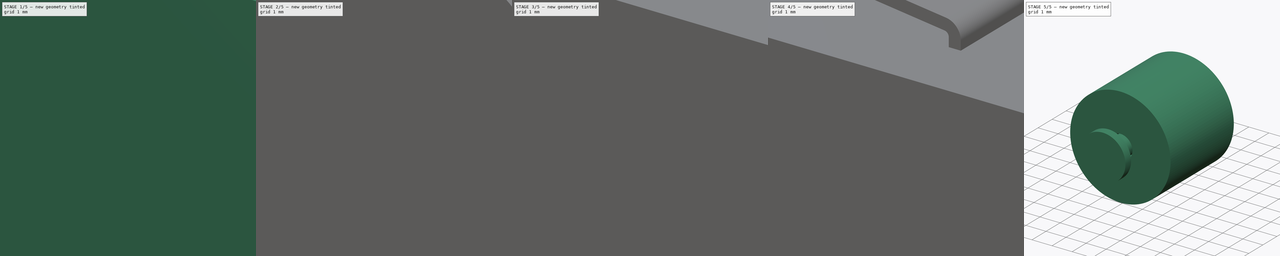
[diagram: build sequence overview — one tinted view per stage of 5, left to right]
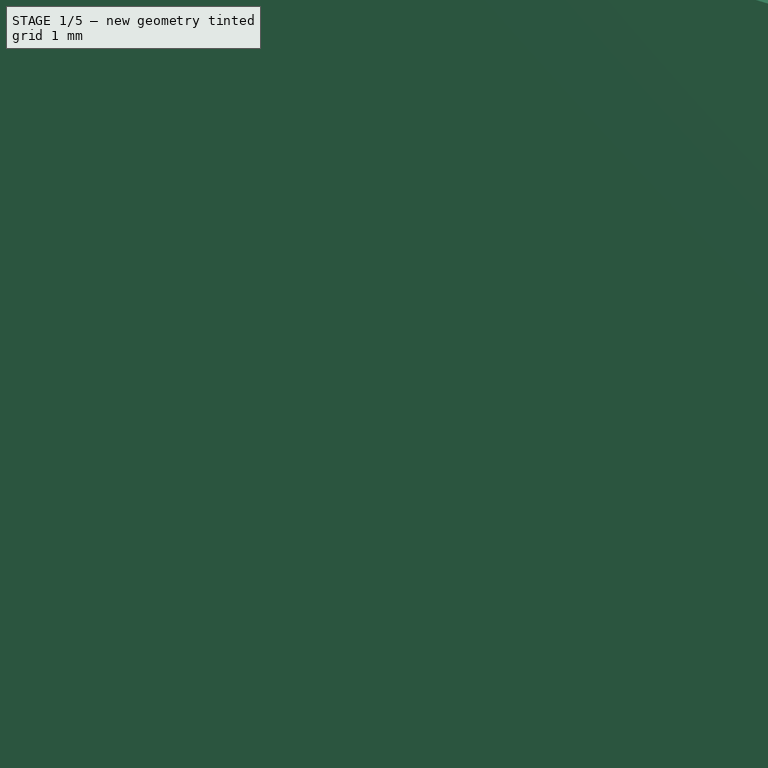
[diagram: stage 1 of 5 — iso view after this stage's code; geometry added in this stage tinted green]
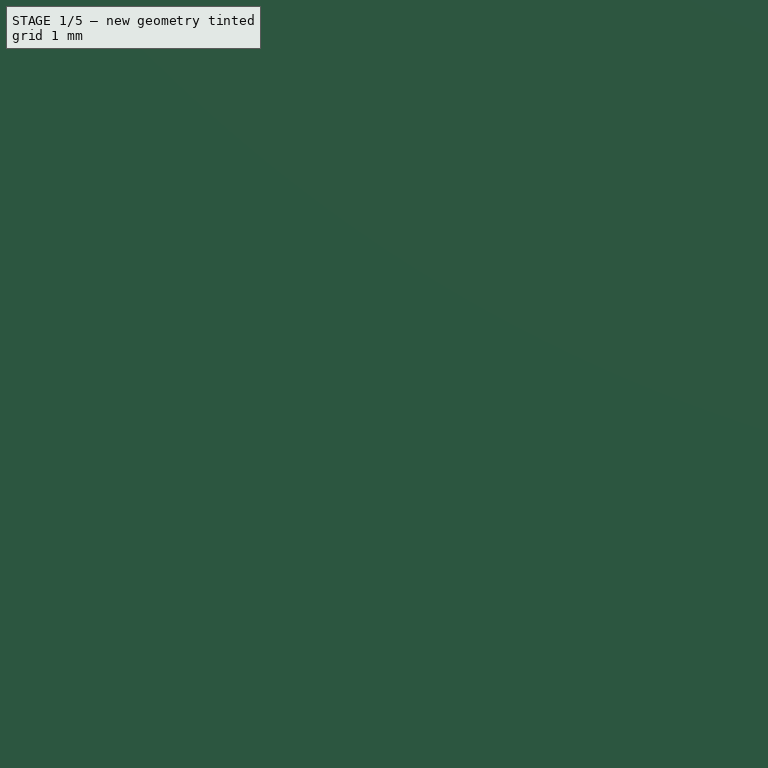
[diagram: stage 1 of 5 — front view after this stage's code; geometry added in this stage tinted green]
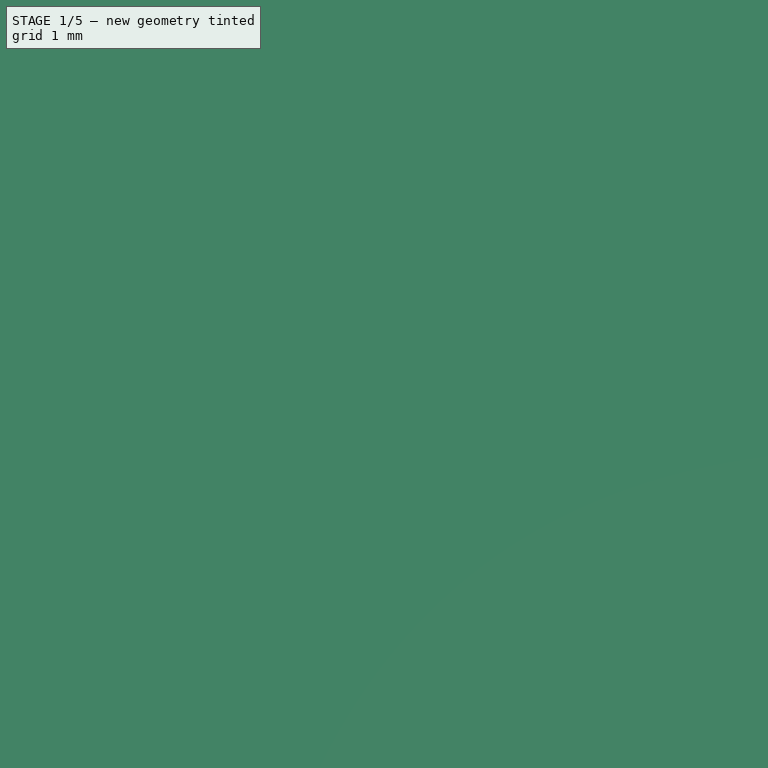
[diagram: stage 1 of 5 — top view after this stage's code; geometry added in this stage tinted green]
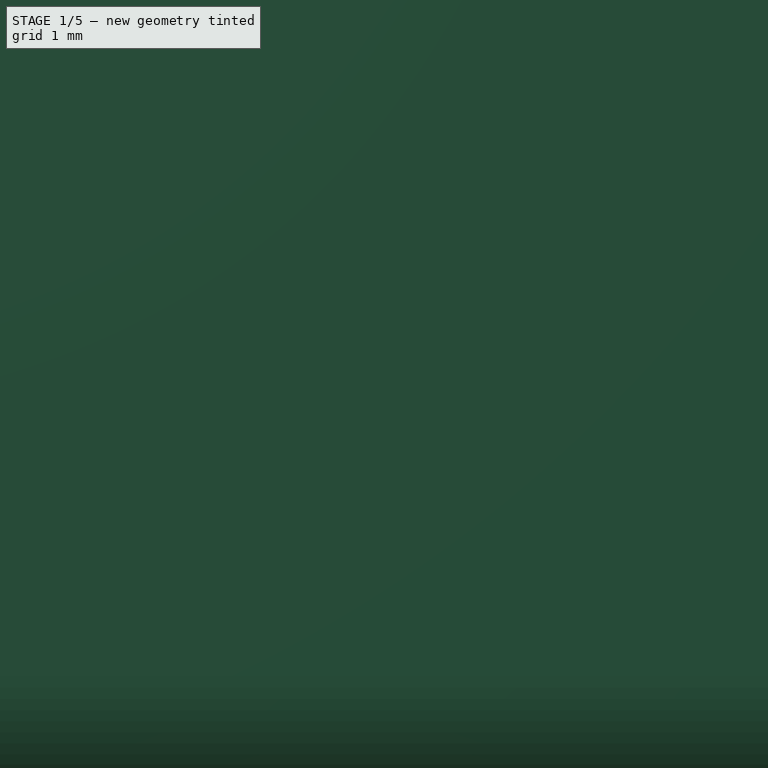
[diagram: stage 1 of 5 — right view after this stage's code; geometry added in this stage tinted green]
FCSTD DOCUMENT  (FreeCAD 2022.709R28846 (Git))
Label: LimitSW
License: All rights reserved
LicenseURL: http://en.wikipedia.org/wiki/All_rights_reserved
objects: Sketcher::SketchObject×15, PartDesign::Pad×8, PartDesign::Pocket×7, PartDesign::Mirrored×3, PartDesign::SubShapeBinder×3, PartDesign::Body×3, PartDesign::Plane×2, PartDesign::LinearPattern×1, PartDesign::Line×1, PartDesign::Revolution×1, App::Part×1
note: 84 computed .brp shape members not serialized (recipe doc carries the construction recipe); baked Part::Feature solids carry a one-line shape summary decoded from their .brp

FEATURE [Sketcher::SketchObject] Sketch
  ArcFitTolerance = 1e-06
  AttachmentSupport = -> [XZ_Plane]
  FullyConstrained = true
  MapMode = 5
  Placement = pos=(0,0,0) rot=(1,0,0;1.5708rad)
  Support = -> [XZ_Plane]
  TreeRank = 11
  sketch-geometry (8):
    g0: LineSegment StartX=2.8 StartY=0 StartZ=0 EndX=25 EndY=0 EndZ=0
    g1: LineSegment StartX=27.8 StartY=-2.8 StartZ=0 EndX=27.8 EndY=-13.1 EndZ=0
    g2: LineSegment StartX=25 StartY=-15.9 StartZ=0 EndX=2.8 EndY=-15.9 EndZ=0
    g3: LineSegment StartX=0 StartY=-13.1 StartZ=0 EndX=0 EndY=-2.8 EndZ=0
    g4: ArcOfCircle CenterX=2.8 CenterY=-2.8 CenterZ=0 NormalX=0 NormalY=0 NormalZ=1 AngleXU=0 Radius=2.8 StartAngle=1.5708 EndAngle=3.14159
    g5: ArcOfCircle CenterX=25 CenterY=-2.8 CenterZ=0 NormalX=0 NormalY=0 NormalZ=1 AngleXU=0 Radius=2.8 StartAngle=0 EndAngle=1.5708
    g6: ArcOfCircle CenterX=25 CenterY=-13.1 CenterZ=0 NormalX=0 NormalY=0 NormalZ=1 AngleXU=0 Radius=2.8 StartAngle=4.71239 EndAngle=6.28319
    g7: ArcOfCircle CenterX=2.8 CenterY=-13.1 CenterZ=0 NormalX=0 NormalY=0 NormalZ=1 AngleXU=0 Radius=2.8 StartAngle=3.14159 EndAngle=4.71239
  constraints (20):
    c: Horizontal(g0)
    c: Horizontal(g2)
    c: Vertical(g1)
    c: Vertical(g3)
    c: Tangent(g0,g4) = 1.5708
    c: Tangent(g3,g4) = 1.5708
    c: Tangent(g0,g5) = 1.5708
    c: Tangent(g1,g5) = 1.5708
    c: Tangent(g2,g6) = 1.5708
    c: Tangent(g1,g6) = 1.5708
    c: Tangent(g2,g7) = 1.5708
    c: Tangent(g3,g7) = 1.5708
    c: Equal(g4,g7)
    c: Equal(g4,g5)
    c: Equal(g6,g4)
    c: PointOnObject(g3,g-2)
    c: PointOnObject(g0,g-1)
    c: Radius(g4) = 2.8
    c: DistanceY(g2,g0) = 15.9
    c: DistanceX(g3,g1) = 27.8
FEATURE [PartDesign::Pad] Pad
  ClaimChildren = false
  Direction = (1,1,1)
  Fit = 0
  FitJoin = 0
  InnerFit = 0
  InnerFitJoin = 0
  InnerTaperAngle = 0
  InnerTaperAngleRev = 0
  Length = 10.3
  Length2 = 100
  Linearize = true
  Midplane = true
  NewSolid = false
  Placement = pos=(0,0,0) rot=(1,0,0;1.5708rad)
  Profile = -> Sketch
  Suppress = false
  TreeRank = 12
  Type = 0
  _ProfileBasedVersion = 1
FEATURE [Sketcher::SketchObject] Sketch001
  ArcFitTolerance = 1e-06
  AttachmentSupport = -> [XZ_Plane]
  ExternalGeometry = -> [Pad]
  FullyConstrained = true
  MapMode = 5
  Placement = pos=(0,0,0) rot=(1,0,0;1.5708rad)
  Support = -> [XZ_Plane]
  TreeRank = 13
  sketch-geometry (8):
    g0: LineSegment StartX=15 StartY=-15.9 StartZ=0 EndX=15 EndY=-17.6 EndZ=0
    g1: ArcOfCircle CenterX=16.5 CenterY=-17.6 CenterZ=0 NormalX=0 NormalY=0 NormalZ=1 AngleXU=0 Radius=1.5 StartAngle=3.14159 EndAngle=4.71238
    g2: LineSegment StartX=16.5 StartY=-19.1 StartZ=0 EndX=23 EndY=-19.1 EndZ=0
    g3: LineSegment StartX=15.8 StartY=-15.9 StartZ=0 EndX=15 EndY=-15.9 EndZ=0
    g4: LineSegment StartX=15.8 StartY=-17.6 StartZ=0 EndX=15.8 EndY=-15.9 EndZ=0
    g5: ArcOfCircle CenterX=16.5 CenterY=-17.6 CenterZ=0 NormalX=0 NormalY=0 NormalZ=1 AngleXU=0 Radius=0.7 StartAngle=3.14159 EndAngle=4.71238
    g6: LineSegment StartX=16.5 StartY=-18.3 StartZ=0 EndX=23 EndY=-18.3 EndZ=0
    g7: LineSegment StartX=23 StartY=-18.3 StartZ=0 EndX=23 EndY=-19.1 EndZ=0
  constraints (25):
    c: Vertical(g0)
    c: Coincident(g1,g0)
    c: Coincident(g2,g1)
    c: Horizontal(g2)
    c: Tangent(g1,g2)
    c: Tangent(g1,g0)
    c: Radius(g1) = 1.5
    c: Horizontal(g-3,g0)
    c: Coincident(g3,g0)
    c: Horizontal(g3)
    c: DistanceX(g3,g3) = 0.8
    c: Coincident(g4,g3)
    c: Vertical(g4)
    c: Coincident(g5,g4)
    c: Coincident(g6,g5)
    c: Horizontal(g6)
    c: Tangent(g6,g5)
    c: Tangent(g5,g4)
    c: Coincident(g5,g1)
    c: Coincident(g7,g6)
    c: Coincident(g7,g2)
    c: Vertical(g7)
    c: DistanceX(g-4,g0) = 15
    c: DistanceY(g1,g0) = 3.2
    c: DistanceX(g0,g2) = 8
FEATURE [PartDesign::Pad] Pad001
  BaseFeature = -> Pad
  ClaimChildren = false
  Direction = (1,1,1)
  Fit = 0
  FitJoin = 0
  InnerFit = 0
  InnerFitJoin = 0
  InnerTaperAngle = 0
  InnerTaperAngleRev = 0
  Length = 6.5
  Length2 = 100
  Linearize = true
  Midplane = true
  NewSolid = false
  Placement = pos=(0,0,0) rot=(1,0,0;1.5708rad)
  Profile = -> Sketch001
  Suppress = false
  TreeRank = 14
  Type = 0
  _ProfileBasedVersion = 1
FEATURE [Sketcher::SketchObject] Sketch002
  ArcFitTolerance = 1e-06
  AttachmentSupport = -> [Pad001]
  ExternalGeometry = -> [Pad001]
  FullyConstrained = true
  MapMode = 5
  Placement = pos=(0,4.2e-15,-19.1) rot=(1,0,0;3.14159rad)
  Support = -> [Pad001]
  TreeRank = 15
  sketch-geometry (5):
    g0: LineSegment StartX=23 StartY=1.45 StartZ=0 EndX=23 EndY=3.25 EndZ=0
    g1: LineSegment StartX=23 StartY=3.25 StartZ=0 EndX=17.8 EndY=3.25 EndZ=0
    g2: LineSegment StartX=17.8 StartY=3.25 StartZ=0 EndX=17.8 EndY=2.45 EndZ=0
    g3: LineSegment StartX=17.8 StartY=2.45 StartZ=0 EndX=22 EndY=2.45 EndZ=0
    g4: LineSegment StartX=22 StartY=2.45 StartZ=0 EndX=23 EndY=1.45 EndZ=0
  constraints (14):
    c: Coincident(g0,g1)
    c: Coincident(g1,g2)
    c: Horizontal(g1)
    c: Vertical(g0)
    c: Vertical(g2)
    c: Coincident(g0,g-3)
    c: DistanceX(g1,g1) = 5.2
    c: DistanceY(g-1,g2) = 2.45
    c: Coincident(g3,g2)
    c: Coincident(g0,g4)
    c: Coincident(g4,g3)
    c: Horizontal(g3)
    c: Angle(g0,g4) = 0.785398
    c: DistanceX(g3,g0) = 1
FEATURE [PartDesign::Pocket] Pocket
  BaseFeature = -> Pad001
  ClaimChildren = false
  Fit = 0
  FitJoin = 0
  InnerFit = 0
  InnerFitJoin = 0
  InnerTaperAngle = 0
  InnerTaperAngleRev = 0
  Length = 5
  Length2 = 100
  Linearize = true
  NewSolid = false
  Placement = pos=(0,0,0) rot=(1,0,0;1.5708rad)
  Profile = -> Sketch002
  Suppress = false
  TreeRank = 16
  Type = 2
  _ProfileBasedVersion = 1
FEATURE [PartDesign::Mirrored] Mirrored
  BaseFeature = -> Pocket
  CopyShape = false
  MirrorPlane = -> XZ_Plane
  NewSolid = false
  OriginalSubs = -> [Pocket]
  Originals = -> [Pocket]
  ParallelTransform = true
  Placement = pos=(0,0,0) rot=(1,0,0;1.5708rad)
  SubTransform = true
  Suppress = false
  TreeRank = 17
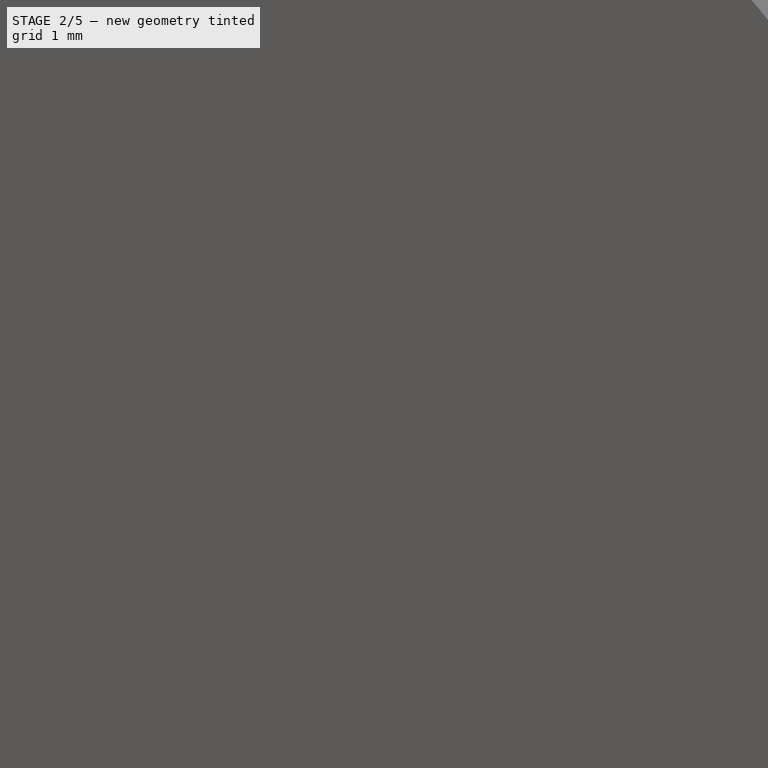
[diagram: stage 2 of 5 — iso view after this stage's code; geometry added in this stage tinted green]
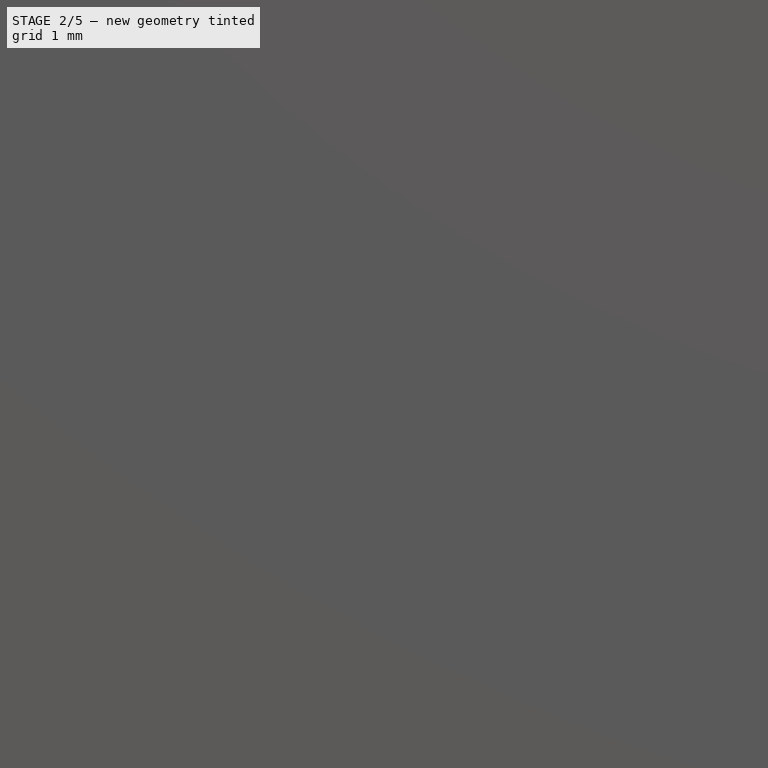
[diagram: stage 2 of 5 — front view after this stage's code; geometry added in this stage tinted green]
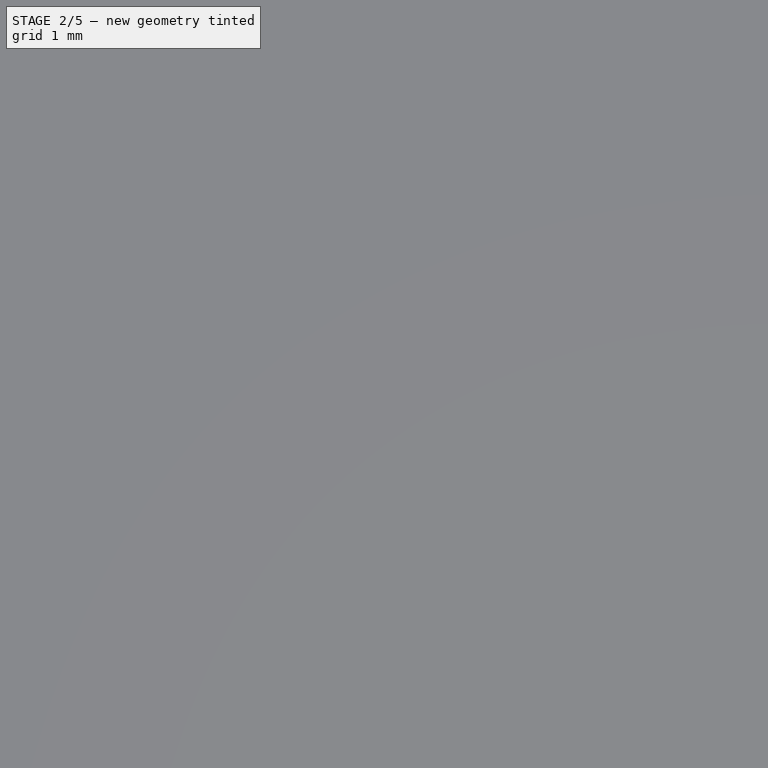
[diagram: stage 2 of 5 — top view after this stage's code; geometry added in this stage tinted green]
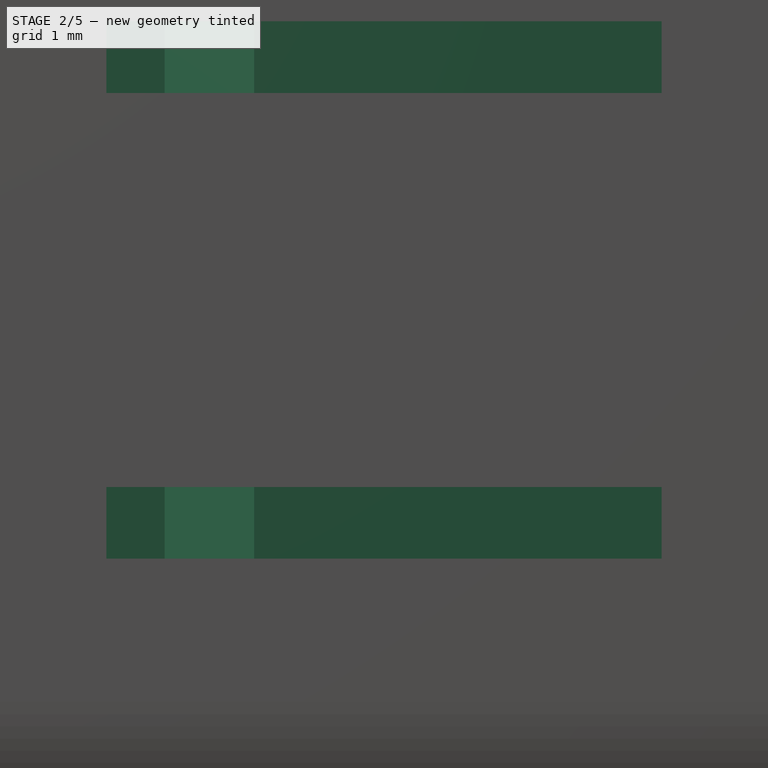
[diagram: stage 2 of 5 — right view after this stage's code; geometry added in this stage tinted green]
FEATURE [Sketcher::SketchObject] Sketch003
  ArcFitTolerance = 1e-06
  AttachmentSupport = -> [Mirrored]
  ExternalGeometry = -> [Mirrored]
  FullyConstrained = true
  MapMode = 5
  Placement = pos=(0,4.2e-15,-19.1) rot=(1,0,0;3.14159rad)
  Support = -> [Mirrored]
  TreeRank = 18
  sketch-geometry (2):
    g0: Circle CenterX=20.4 CenterY=0 CenterZ=0 NormalX=0 NormalY=0 NormalZ=1 AngleXU=0 Radius=0.9
    g1: LineSegment [constr] StartX=17.8 StartY=-2.45 StartZ=0 EndX=23 EndY=2.45 EndZ=0
  constraints (6):
    c: PointOnObject(g0,g-1)
    c: Diameter(g0) = 1.8
    c: Coincident(g1,g-3)
    c: Horizontal(g1,g-4)
    c: Vertical(g1,g-5)
    c: PointOnObject(g0,g1)
FEATURE [PartDesign::Pocket] Pocket001
  BaseFeature = -> Mirrored
  ClaimChildren = false
  Fit = 0
  FitJoin = 0
  InnerFit = 0
  InnerFitJoin = 0
  InnerTaperAngle = 0
  InnerTaperAngleRev = 0
  Length = 5
  Length2 = 100
  Linearize = true
  NewSolid = false
  Placement = pos=(0,0,0) rot=(1,0,0;1.5708rad)
  Profile = -> Sketch003
  Suppress = false
  TreeRank = 19
  Type = 2
  _ProfileBasedVersion = 1
FEATURE [PartDesign::Plane] DatumPlane
  AttachmentOffset = pos=(0,0,-5.5) rot=(0,0,1;0rad)
  AttachmentSupport = -> [Pocket001]
  Length = 27.8
  MapMode = 5
  MinimumLength = 10
  MinimumWidth = 10
  Placement = pos=(0,-2.4e-15,-5.5) rot=(0,0,1;3.14159rad)
  ResizeMode = 0
  Support = -> [Pocket001]
  TreeRank = 20
  Width = 10.3
FEATURE [Sketcher::SketchObject] Sketch004
  ArcFitTolerance = 1e-06
  AttachmentSupport = -> [DatumPlane]
  ExternalGeometry = -> [Pocket001]
  FullyConstrained = true
  MapMode = 5
  Placement = pos=(0,-2.4e-15,-5.5) rot=(0,0,1;3.14159rad)
  Support = -> [DatumPlane]
  TreeRank = 21
  sketch-geometry (4):
    g0: LineSegment StartX=-36.1 StartY=3.1 StartZ=0 EndX=-27.8 EndY=3.1 EndZ=0
    g1: LineSegment StartX=-27.8 StartY=3.1 StartZ=0 EndX=-27.8 EndY=-3.1 EndZ=0
    g2: LineSegment StartX=-27.8 StartY=-3.1 StartZ=0 EndX=-36.1 EndY=-3.1 EndZ=0
    g3: LineSegment StartX=-36.1 StartY=-3.1 StartZ=0 EndX=-36.1 EndY=3.1 EndZ=0
  constraints (11):
    c: Coincident(g0,g1)
    c: Coincident(g1,g2)
    c: Coincident(g2,g3)
    c: Coincident(g3,g0)
    c: Horizontal(g0)
    c: Horizontal(g2)
    c: Vertical(g3)
    c: Vertical(g-3,g0)
    c: Symmetric(g0,g1,g-1)
    c: DistanceY(g3,g3) = 6.2
    c: DistanceX(g2,g2) = 8.3
FEATURE [PartDesign::Pad] Pad002
  BaseFeature = -> Pocket001
  ClaimChildren = false
  Direction = (1,1,1)
  Fit = 0
  FitJoin = 0
  InnerFit = 0
  InnerFitJoin = 0
  InnerTaperAngle = 0
  InnerTaperAngleRev = 0
  Length = 0.8
  Length2 = 100
  Linearize = true
  NewSolid = false
  Placement = pos=(0,0,0) rot=(1,0,0;1.5708rad)
  Profile = -> Sketch004
  Reversed = true
  Suppress = false
  TreeRank = 22
  Type = 0
  _ProfileBasedVersion = 1
FEATURE [PartDesign::LinearPattern] LinearPattern
  BaseFeature = -> Pad002
  CopyShape = false
  Direction = -> Z_Axis
  Length = 5.2
  NewSolid = false
  Occurrences = 2
  OriginalSubs = -> [Pad002]
  Originals = -> [Pad002]
  ParallelTransform = true
  Placement = pos=(0,0,0) rot=(1,0,0;1.5708rad)
  Reversed = true
  SubTransform = true
  Suppress = false
  TreeRank = 23
FEATURE [Sketcher::SketchObject] Sketch005
  ArcFitTolerance = 1e-06
  AttachmentSupport = -> [DatumPlane]
  ExternalGeometry = -> [LinearPattern]
  FullyConstrained = true
  MapMode = 5
  Placement = pos=(0,-2.4e-15,-5.5) rot=(0,0,1;3.14159rad)
  Support = -> [DatumPlane]
  TreeRank = 24
  sketch-geometry (5):
    g0: LineSegment StartX=-36.1 StartY=3.1 StartZ=0 EndX=-30.9 EndY=3.1 EndZ=0
    g1: LineSegment StartX=-30.9 StartY=3.1 StartZ=0 EndX=-30.9 EndY=2.45 EndZ=0
    g2: LineSegment StartX=-30.9 StartY=2.45 StartZ=0 EndX=-35.1 EndY=2.45 EndZ=0
    g3: LineSegment StartX=-35.1 StartY=2.45 StartZ=0 EndX=-36.1 EndY=1.45 EndZ=0
    g4: LineSegment StartX=-36.1 StartY=3.1 StartZ=0 EndX=-36.1 EndY=1.45 EndZ=0
  constraints (14):
    c: Coincident(g0,g-3)
    c: Horizontal(g0)
    c: Coincident(g1,g0)
    c: Vertical(g1)
    c: Coincident(g2,g1)
    c: Horizontal(g2)
    c: Coincident(g4,g0)
    c: Coincident(g4,g3)
    c: Vertical(g4)
    c: Angle(g3,g4) = 0.785398
    c: Coincident(g2,g3)
    c: DistanceX(g3,g2) = 1
    c: DistanceY(g-1,g1) = 2.45
    c: DistanceX(g0,g0) = 5.2
FEATURE [PartDesign::Pocket] Pocket002
  BaseFeature = -> LinearPattern
  ClaimChildren = false
  Fit = 0
  FitJoin = 0
  InnerFit = 0
  InnerFitJoin = 0
  InnerTaperAngle = 0
  InnerTaperAngleRev = 0
  Length = 0
  Length2 = 100
  Linearize = true
  NewSolid = false
  Placement = pos=(0,0,0) rot=(1,0,0;1.5708rad)
  Profile = -> Sketch005
  Suppress = false
  TreeRank = 25
  Type = 3
  UpToFace = -> LinearPattern [Face20]
  _ProfileBasedVersion = 1
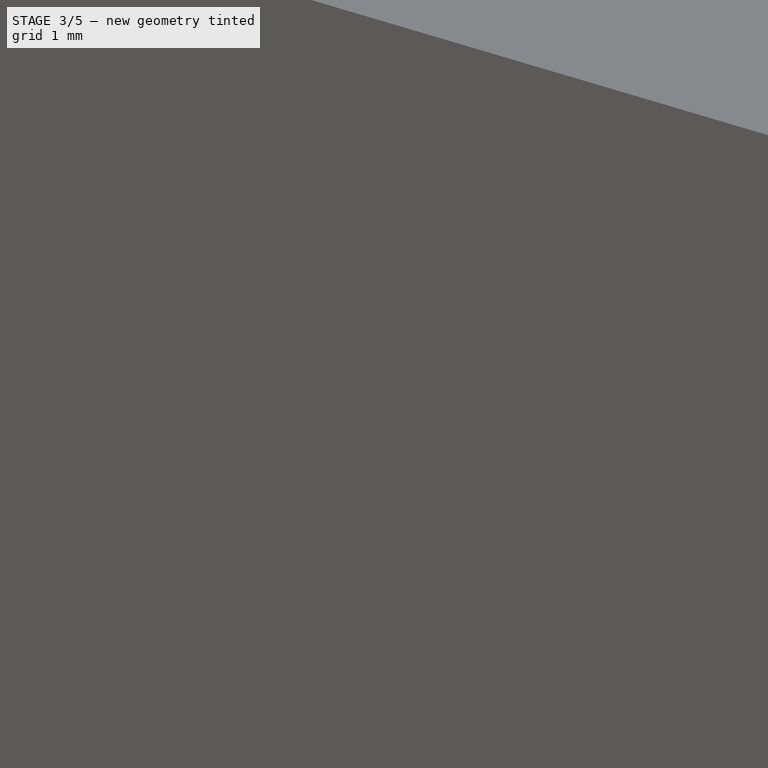
[diagram: stage 3 of 5 — iso view after this stage's code; geometry added in this stage tinted green]
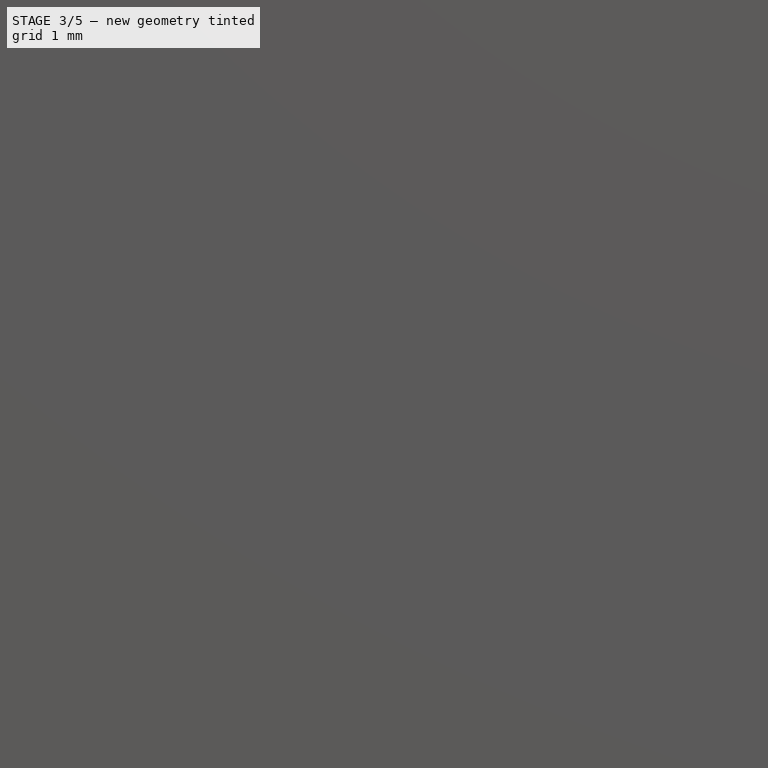
[diagram: stage 3 of 5 — front view after this stage's code; geometry added in this stage tinted green]
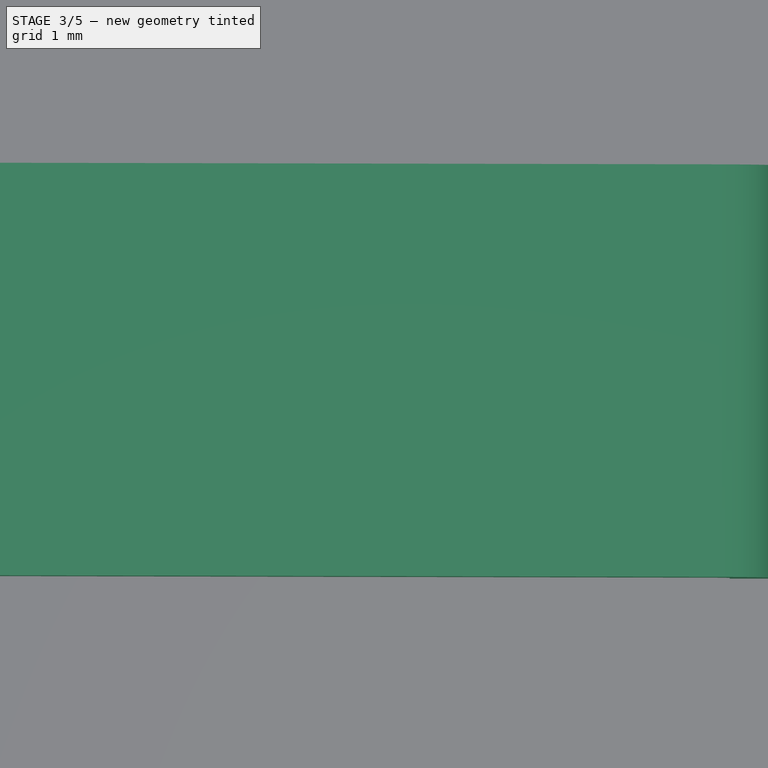
[diagram: stage 3 of 5 — top view after this stage's code; geometry added in this stage tinted green]
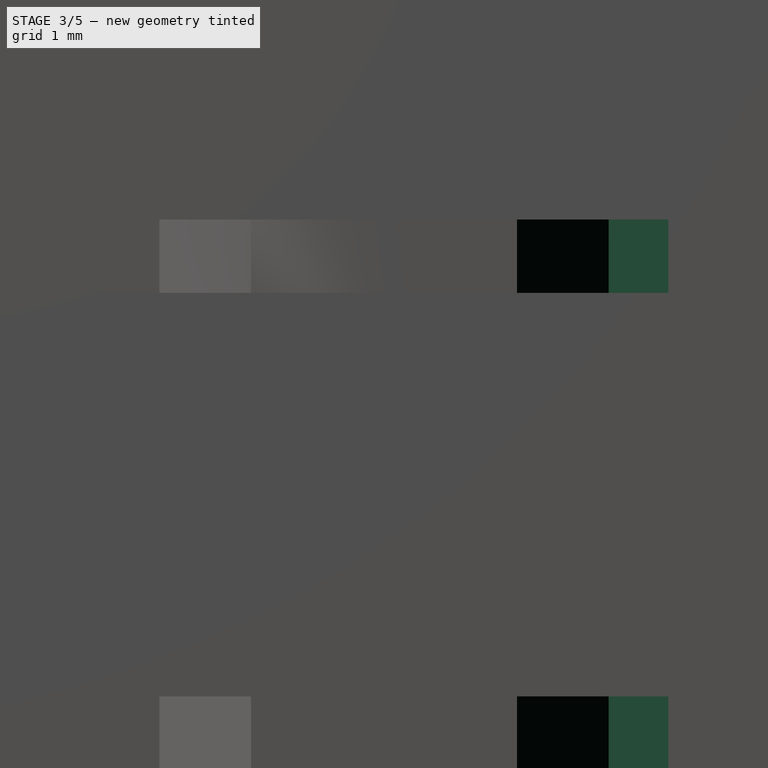
[diagram: stage 3 of 5 — right view after this stage's code; geometry added in this stage tinted green]
FEATURE [PartDesign::Mirrored] Mirrored001
  BaseFeature = -> Pocket002
  CopyShape = false
  MirrorPlane = -> XZ_Plane
  NewSolid = false
  OriginalSubs = -> [Pocket002]
  Originals = -> [Pocket002]
  ParallelTransform = true
  Placement = pos=(0,0,0) rot=(1,0,0;1.5708rad)
  SubTransform = true
  Suppress = false
  TreeRank = 26
FEATURE [Sketcher::SketchObject] Sketch006
  ArcFitTolerance = 1e-06
  AttachmentSupport = -> [DatumPlane]
  ExternalGeometry = -> [Mirrored001]
  FullyConstrained = true
  MapMode = 5
  Placement = pos=(0,-2.4e-15,-5.5) rot=(0,0,1;3.14159rad)
  Support = -> [DatumPlane]
  TreeRank = 27
  sketch-geometry (2):
    g0: Circle CenterX=-33.5 CenterY=0 CenterZ=0 NormalX=0 NormalY=0 NormalZ=1 AngleXU=0 Radius=0.9
    g1: LineSegment [constr] StartX=-30.9 StartY=2.45 StartZ=0 EndX=-36.1 EndY=-2.45 EndZ=0
  constraints (6):
    c: PointOnObject(g0,g-1)
    c: Diameter(g0) = 1.8
    c: Coincident(g1,g-3)
    c: Vertical(g-5,g1)
    c: Horizontal(g1,g-4)
    c: PointOnObject(g0,g1)
FEATURE [PartDesign::Pocket] Pocket003
  BaseFeature = -> Mirrored001
  ClaimChildren = false
  Fit = 0
  FitJoin = 0
  InnerFit = 0
  InnerFitJoin = 0
  InnerTaperAngle = 0
  InnerTaperAngleRev = 0
  Length = 5
  Length2 = 100
  Linearize = true
  NewSolid = false
  Placement = pos=(0,0,0) rot=(1,0,0;1.5708rad)
  Profile = -> Sketch006
  Suppress = false
  TreeRank = 28
  Type = 1
  _ProfileBasedVersion = 1
FEATURE [Sketcher::SketchObject] Sketch008
  ArcFitTolerance = 1e-06
  AttachmentSupport = -> [XZ_Plane]
  ExternalGeometry = -> [Pocket003]
  FullyConstrained = true
  MapMode = 5
  Placement = pos=(0,0,0) rot=(1,0,0;1.5708rad)
  Support = -> [XZ_Plane]
  TreeRank = 30
  sketch-geometry (6):
    g0: LineSegment StartX=3.4 StartY=0 StartZ=0 EndX=6.2 EndY=0 EndZ=0
    g1: LineSegment StartX=6.2 StartY=0 StartZ=0 EndX=6.2 EndY=1.26437 EndZ=0
    g2: LineSegment StartX=3.4 StartY=0 StartZ=0 EndX=3.4 EndY=1.26437 EndZ=0
    g3: LineSegment [constr] StartX=4.8 StartY=0 StartZ=0 EndX=4.8 EndY=0.3 EndZ=0
    g4: ArcOfCircle CenterX=4.8 CenterY=0.3 CenterZ=0 NormalX=0 NormalY=0 NormalZ=1 AngleXU=0 Radius=1.7 StartAngle=0.603191 EndAngle=2.5384
    g5: GeomPoint [constr] X=4.8 Y=2 Z=0
  constraints (17):
    c: PointOnObject(g0,g-1)
    c: PointOnObject(g0,g-1)
    c: Coincident(g1,g0)
    c: Coincident(g2,g0)
    c: Vertical(g2)
    c: Vertical(g1)
    c: Equal(g2,g1)
    c: Symmetric(g0,g0,g3)
    c: Coincident(g4,g2)
    c: Coincident(g4,g1)
    c: Coincident(g4,g3)
    c: DistanceX(g0,g0) = 2.8
    c: DistanceX(g3,g-3) = 23
    c: PointOnObject(g5,g4)
    c: PointOnObject(g5,g3)
    c: DistanceY(g3,g5) = 2
    c: Radius(g4) = 1.7
FEATURE [PartDesign::Pad] Pad003
  BaseFeature = -> Pocket003
  ClaimChildren = false
  Direction = (1,1,1)
  Fit = 0
  FitJoin = 0
  InnerFit = 0
  InnerFitJoin = 0
  InnerTaperAngle = 0
  InnerTaperAngleRev = 0
  Length = 4
  Length2 = 100
  Linearize = true
  Midplane = true
  NewSolid = false
  Placement = pos=(0,0,0) rot=(1,0,0;1.5708rad)
  Profile = -> Sketch008
  Suppress = false
  TreeRank = 31
  Type = 0
  _ProfileBasedVersion = 1
FEATURE [Sketcher::SketchObject] Sketch009
  ArcFitTolerance = 1e-06
  AttachmentSupport = -> [XZ_Plane]
  ExternalGeometry = -> [Pad003]
  FullyConstrained = true
  MapMode = 5
  Placement = pos=(0,0,0) rot=(1,0,0;1.5708rad)
  Support = -> [XZ_Plane]
  TreeRank = 32
  sketch-geometry (9):
    g0: LineSegment StartX=16.3 StartY=0.382947 StartZ=0 EndX=16.3 EndY=4.2e-15 EndZ=0
    g1: LineSegment StartX=16.1251 StartY=0.581367 StartZ=0 EndX=-11.0415 EndY=4.01686 EndZ=0
    g2: ArcOfCircle CenterX=16.1 CenterY=0.382947 CenterZ=0 NormalX=0 NormalY=0 NormalZ=1 AngleXU=0 Radius=0.2 StartAngle=0 EndAngle=1.445
    g3: LineSegment StartX=-10.9788 StartY=4.51291 StartZ=0 EndX=16.1878 EndY=1.07742 EndZ=0
    g4: LineSegment StartX=16.8 StartY=0.382947 StartZ=0 EndX=16.8 EndY=4.2e-15 EndZ=0
    g5: LineSegment StartX=16.8 StartY=4.1e-15 StartZ=0 EndX=16.3 EndY=4.1e-15 EndZ=0
    g6: ArcOfCircle CenterX=16.1 CenterY=0.382947 CenterZ=0 NormalX=0 NormalY=0 NormalZ=1 AngleXU=0 Radius=0.7 StartAngle=0 EndAngle=1.445
    g7: GeomPoint [constr] X=16.8 Y=1 Z=0
    g8: LineSegment StartX=-10.9788 StartY=4.51291 StartZ=0 EndX=-11.0415 EndY=4.01686 EndZ=0
  constraints (24):
    c: PointOnObject(g0,g-5)
    c: Tangent(g-6,g1)
    c: Vertical(g0)
    c: Tangent(g1,g2) = -1.5708
    c: Tangent(g0,g2) = 1.5708
    c: Radius(g2) = 0.2
    c: PointOnObject(g4,g-5)
    c: Vertical(g4)
    c: Coincident(g5,g4)
    c: Coincident(g5,g0)
    c: DistanceX(g5,g5) = 0.5
    c: DistanceX(g4,g-3) = 11
    c: Parallel(g3,g1)
    c: Tangent(g4,g6) = 1.5708
    c: Tangent(g3,g6) = 1.5708
    c: Coincident(g6,g2)
    c: PointOnObject(g7,g3)
    c: PointOnObject(g7,g4)
    c: DistanceY(g4,g7) = 1
    c: Coincident(g8,g3)
    c: Coincident(g8,g1)
    c: Perpendicular(g1,g8)
    c: Distance(g3,g7) = 28
    c: DistanceY(g-7,g3) = 20.4129
FEATURE [PartDesign::Pad] Pad004
  BaseFeature = -> Pad003
  ClaimChildren = false
  Direction = (1,1,1)
  Fit = 0
  FitJoin = 0
  InnerFit = 0
  InnerFitJoin = 0
  InnerTaperAngle = 0
  InnerTaperAngleRev = 0
  Length = 4.5
  Length2 = 100
  Linearize = true
  Midplane = true
  NewSolid = false
  Placement = pos=(0,0,0) rot=(1,0,0;1.5708rad)
  Profile = -> Sketch009
  Suppress = false
  TreeRank = 33
  Type = 0
  _ProfileBasedVersion = 1
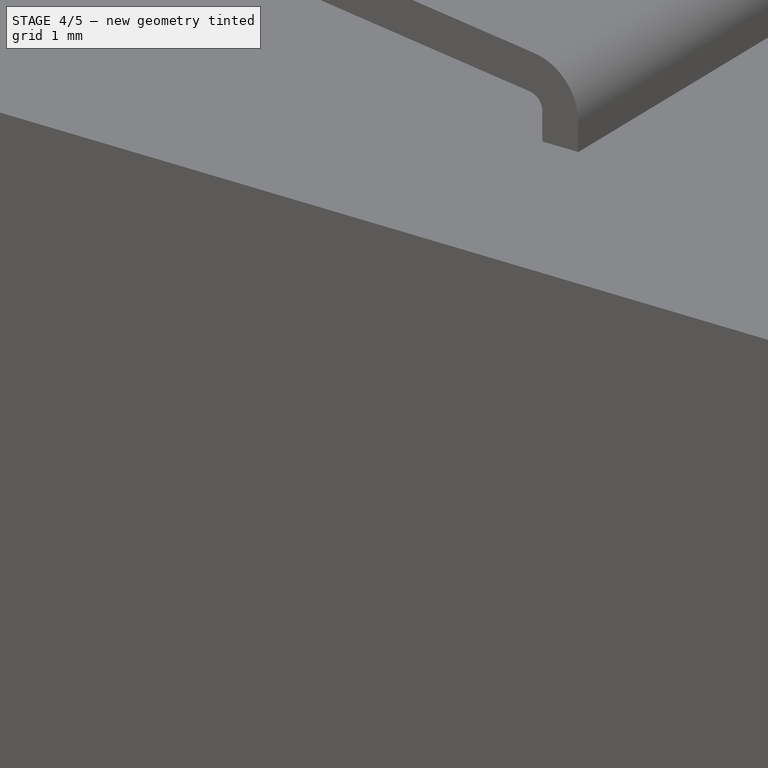
[diagram: stage 4 of 5 — iso view after this stage's code; geometry added in this stage tinted green]
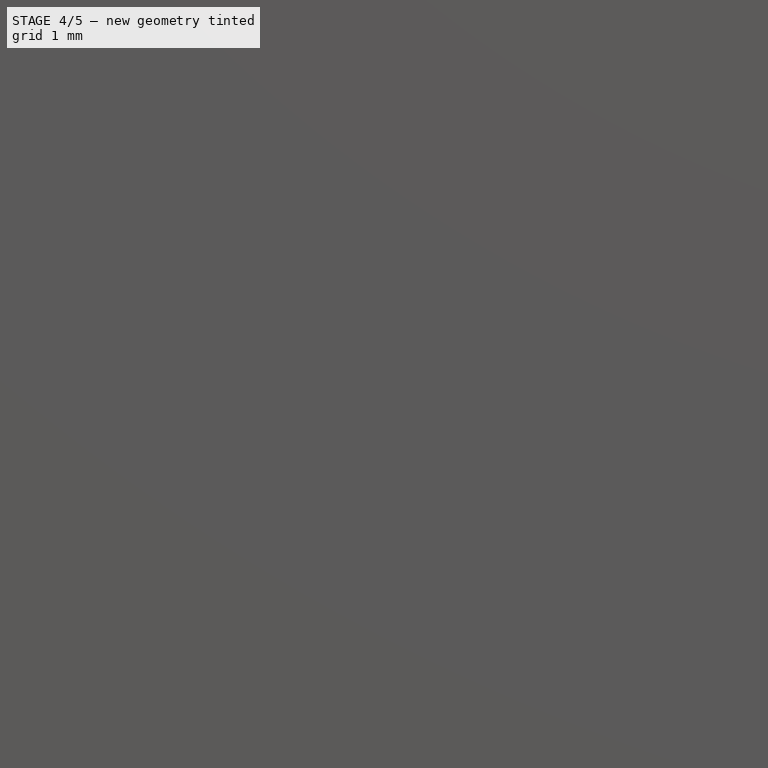
[diagram: stage 4 of 5 — front view after this stage's code; geometry added in this stage tinted green]
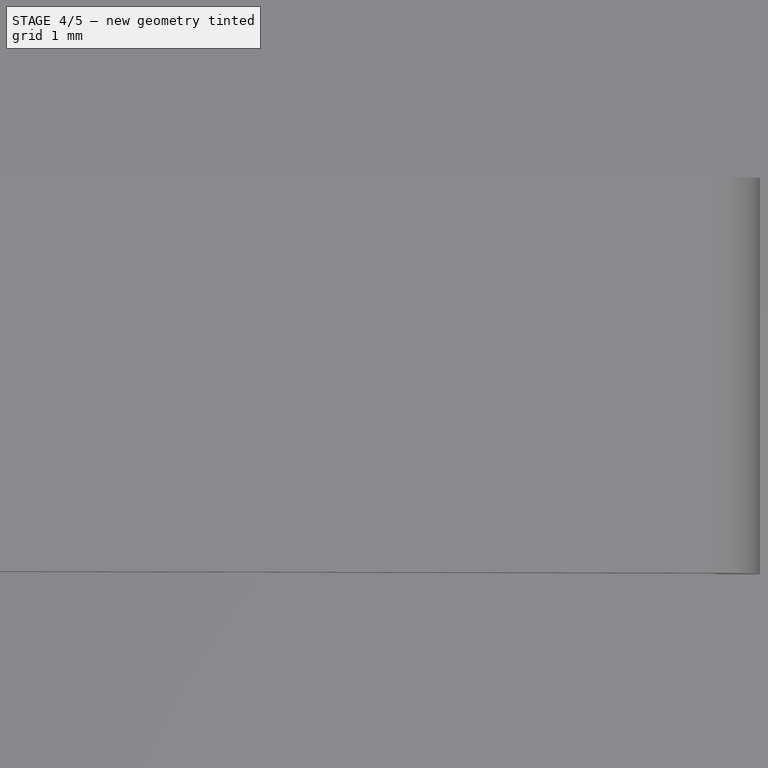
[diagram: stage 4 of 5 — top view after this stage's code; geometry added in this stage tinted green]
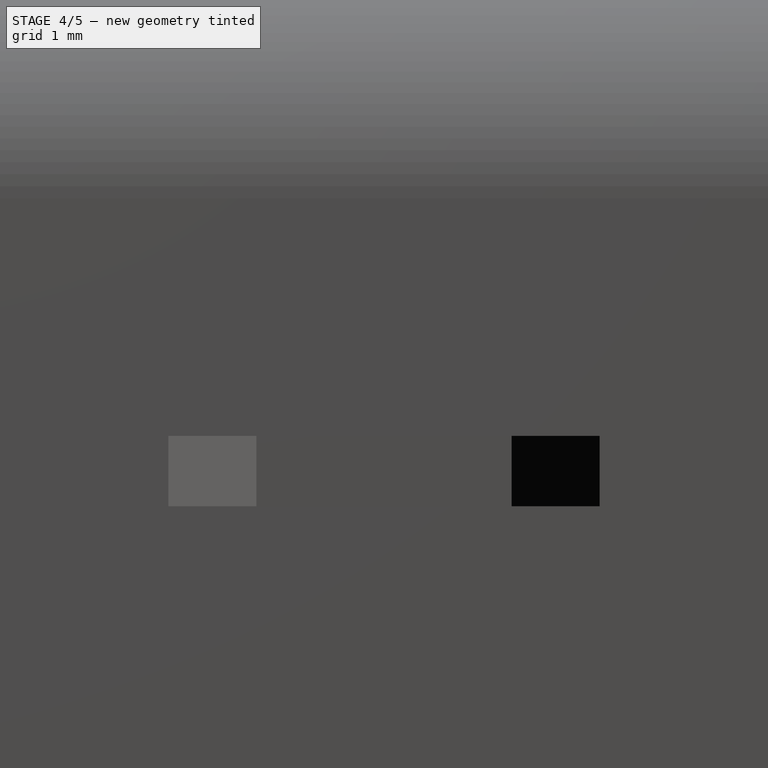
[diagram: stage 4 of 5 — right view after this stage's code; geometry added in this stage tinted green]
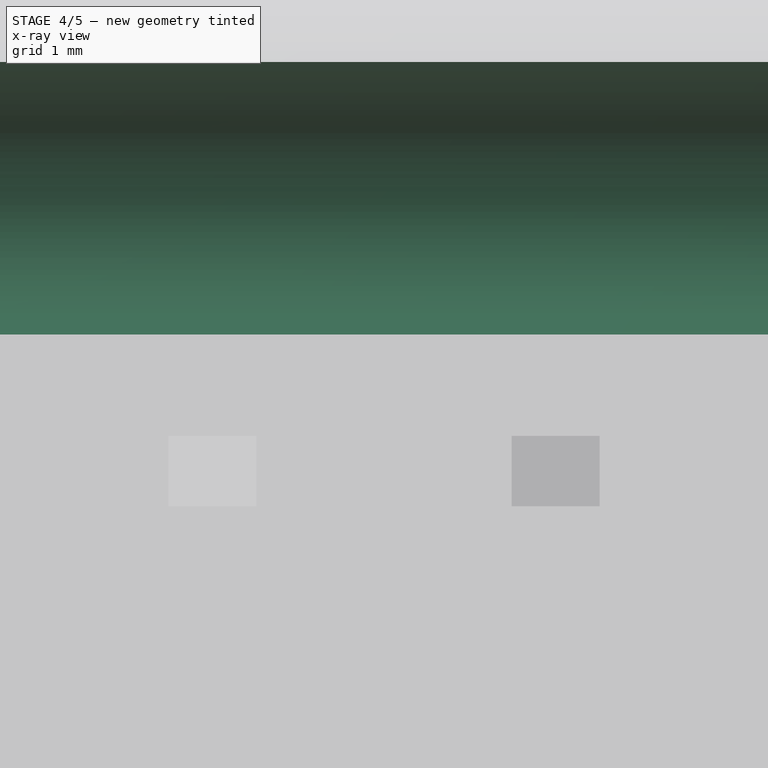
[diagram: stage 4 of 5 — x-ray composite at the right view; earlier geometry ghosted, this stage's added geometry solid]
FEATURE [Sketcher::SketchObject] Sketch010
  ArcFitTolerance = 1e-06
  AttachmentSupport = -> [Pad004]
  ExternalGeometry = -> [Pad004]
  FullyConstrained = true
  MapMode = 5
  Placement = pos=(-11.3677,-3e-16,1.43756) rot=(-0.661264,0,0.750154;3.14159rad)
  Support = -> [Pad004]
  TreeRank = 34
  sketch-geometry (8):
    g0: LineSegment StartX=-3.09984 StartY=2.25 StartZ=0 EndX=-2.59984 EndY=2.25 EndZ=0
    g1: LineSegment StartX=-3.09984 StartY=2.25 StartZ=0 EndX=-3.09984 EndY=2.3 EndZ=0
    g2: LineSegment StartX=-3.29984 StartY=2.5 StartZ=0 EndX=-8.09984 EndY=2.5 EndZ=0
    g3: LineSegment StartX=-8.09984 StartY=3 StartZ=0 EndX=-3.29984 EndY=3 EndZ=0
    g4: LineSegment StartX=-8.09984 StartY=3 StartZ=0 EndX=-8.09984 EndY=2.5 EndZ=0
    g5: LineSegment StartX=-2.59984 StartY=2.25 StartZ=0 EndX=-2.59984 EndY=2.3 EndZ=0
    g6: ArcOfCircle CenterX=-3.29984 CenterY=2.3 CenterZ=0 NormalX=0 NormalY=0 NormalZ=1 AngleXU=0 Radius=0.7 StartAngle=-1.8e-15 EndAngle=1.5708
    g7: ArcOfCircle CenterX=-3.29984 CenterY=2.3 CenterZ=0 NormalX=0 NormalY=0 NormalZ=1 AngleXU=0 Radius=0.2 StartAngle=-9e-16 EndAngle=1.5708
  constraints (19):
    c: Coincident(g0,g-4)
    c: Coincident(g0,g-3)
    c: Coincident(g1,g0)
    c: Horizontal(g2)
    c: Vertical(g1)
    c: Horizontal(g3)
    c: Coincident(g4,g3)
    c: Coincident(g4,g2)
    c: Vertical(g4)
    c: Coincident(g5,g0)
    c: Vertical(g5)
    c: Tangent(g3,g6) = 1.5708
    c: Tangent(g5,g6) = -1.5708
    c: Tangent(g2,g7) = -1.5708
    c: Tangent(g1,g7) = -1.5708
    c: Radius(g7) = 0.2
    c: Coincident(g6,g7)
    c: DistanceY(g-1,g3) = 3
    c: DistanceX(g3,g0) = 5.5
FEATURE [PartDesign::Pad] Pad005
  BaseFeature = -> Pad004
  ClaimChildren = false
  Direction = (1,1,1)
  Fit = 0
  FitJoin = 0
  InnerFit = 0
  InnerFitJoin = 0
  InnerTaperAngle = 0
  InnerTaperAngleRev = 0
  Length = 3.3
  Length2 = 100
  Linearize = true
  NewSolid = false
  Placement = pos=(0,0,0) rot=(1,0,0;1.5708rad)
  Profile = -> Sketch010
  Refine = true
  Reversed = true
  Suppress = false
  TreeRank = 35
  Type = 0
  _ProfileBasedVersion = 1
FEATURE [PartDesign::Mirrored] Mirrored002
  BaseFeature = -> Pad005
  CopyShape = false
  MirrorPlane = -> XZ_Plane
  NewSolid = false
  ParallelTransform = true
  Placement = pos=(0,0,0) rot=(1,0,0;1.5708rad)
  Refine = true
  SubTransform = true
  Suppress = false
  TreeRank = 36
FEATURE [Sketcher::SketchObject] Sketch011
  ArcFitTolerance = 1e-06
  AttachmentSupport = -> [XZ_Plane]
  ExternalGeometry = -> [Mirrored002]
  FullyConstrained = true
  MapMode = 5
  Placement = pos=(0,0,0) rot=(1,0,0;1.5708rad)
  Support = -> [XZ_Plane]
  TreeRank = 37
  sketch-geometry (6):
    g0: LineSegment StartX=-10.3515 StartY=9.4734 StartZ=0 EndX=-7.07753 EndY=9.05938 EndZ=0
    g1: LineSegment [constr] StartX=-10.5585 StartY=7.83645 StartZ=0 EndX=-7.28454 EndY=7.42243 EndZ=0
    g2: LineSegment StartX=-10.3515 StartY=9.4734 StartZ=0 EndX=-10.5585 EndY=7.83645 EndZ=0
    g3: LineSegment StartX=-7.07753 StartY=9.05938 StartZ=0 EndX=-7.28454 EndY=7.42243 EndZ=0
    g4: ArcOfCircle CenterX=-8.9215 CenterY=7.62943 CenterZ=0 NormalX=0 NormalY=0 NormalZ=1 AngleXU=0 Radius=1.65 StartAngle=6.1574 EndAngle=9.29898
    g5: Circle CenterX=-8.9215 CenterY=7.62943 CenterZ=0 NormalX=0 NormalY=0 NormalZ=1 AngleXU=0 Radius=0.55
  constraints (15):
    c: Coincident(g0,g-3)
    c: Coincident(g0,g-4)
    c: PointOnObject(g1,g-3)
    c: PointOnObject(g1,g-4)
    c: Equal(g0,g1)
    c: Coincident(g2,g0)
    c: Coincident(g2,g1)
    c: Coincident(g3,g0)
    c: Coincident(g3,g1)
    c: Coincident(g4,g2)
    c: Coincident(g4,g3)
    c: Tangent(g4,g0)
    c: Tangent(g4,g2)
    c: Diameter(g5) = 1.1
    c: Coincident(g5,g4)
FEATURE [PartDesign::Pocket] Pocket004
  BaseFeature = -> Mirrored002
  ClaimChildren = false
  Fit = 0
  FitJoin = 0
  InnerFit = 0
  InnerFitJoin = 0
  InnerTaperAngle = 0
  InnerTaperAngleRev = 0
  Length = 5
  Length2 = 100
  Linearize = true
  Midplane = true
  NewSolid = false
  Placement = pos=(0,0,0) rot=(1,0,0;1.5708rad)
  Profile = -> Sketch011
  Suppress = false
  TreeRank = 38
  Type = 1
  _ProfileBasedVersion = 1
FEATURE [PartDesign::Body] Body002  label="LimitSwitchPinBody"
  AutoGroupSolids = false
  ClaimAllChildren = false
  ExportMode = 0
  Group = -> [Binder001,DatumPlane001,DatumLine,Sketch013,Revolution]
  Origin = -> Origin003
  Tip = -> Revolution
  TreeRank = 64
  _ExportChildren = -> [Binder001,DatumPlane001,DatumLine,Revolution]
  _GroupVersion = 1
FEATURE [Sketcher::SketchObject] Sketch014
  ArcFitTolerance = 1e-06
  AttachmentSupport = -> [Pocket004]
  ExternalGeometry = -> [Pocket004]
  FullyConstrained = true
  MapMode = 5
  Placement = pos=(0,-5.15,1.1e-15) rot=(1,0,0;1.5708rad)
  Support = -> [Pocket004]
  TreeRank = 70
  sketch-geometry (7):
    g0: Circle CenterX=25 CenterY=-2.8 CenterZ=0 NormalX=0 NormalY=0 NormalZ=1 AngleXU=0 Radius=1.55
    g1: ArcOfCircle CenterX=2.65 CenterY=-13.1 CenterZ=0 NormalX=0 NormalY=0 NormalZ=1 AngleXU=0 Radius=1.55 StartAngle=1.5708 EndAngle=4.71239
    g2: ArcOfCircle CenterX=2.95 CenterY=-13.1 CenterZ=0 NormalX=0 NormalY=0 NormalZ=1 AngleXU=0 Radius=1.55 StartAngle=4.71239 EndAngle=7.85398
    g3: LineSegment StartX=2.65 StartY=-14.65 StartZ=0 EndX=2.95 EndY=-14.65 EndZ=0
    g4: LineSegment StartX=2.65 StartY=-11.55 StartZ=0 EndX=2.95 EndY=-11.55 EndZ=0
    g5: LineSegment [constr] StartX=1.1 StartY=-13.1 StartZ=0 EndX=4.5 EndY=-13.1 EndZ=0
    g6: GeomPoint [constr] X=2.8 Y=-13.1 Z=0
  constraints (19):
    c: DistanceX(g0,g-3) = 2.8
    c: Diameter(g0) = 3.1
    c: DistanceY(g0,g-1) = 2.8
    c: Tangent(g1,g4) = 1.5708
    c: Tangent(g1,g3) = -1.5708
    c: Tangent(g3,g2) = -1.5708
    c: Tangent(g4,g2) = 1.5708
    c: Horizontal(g3)
    c: Equal(g1,g2)
    c: Equal(g2,g0)
    c: DistanceX(g1,g2) = 0.3
    c: PointOnObject(g5,g1)
    c: PointOnObject(g5,g2)
    c: Horizontal(g5)
    c: PointOnObject(g2,g5)
    c: Symmetric(g5,g5,g6)
    c: DistanceX(g6,g0) = 22.2
    c: DistanceY(g5,g0) = 10.3
    c: DistanceX(g5,g5) = 3.4
FEATURE [PartDesign::Pocket] Pocket005
  BaseFeature = -> Pocket004
  ClaimChildren = false
  Fit = 0
  FitJoin = 0
  InnerFit = 0
  InnerFitJoin = 0
  InnerTaperAngle = 0
  InnerTaperAngleRev = 0
  Length = 5
  Length2 = 100
  Linearize = true
  NewSolid = false
  Placement = pos=(0,0,0) rot=(1,0,0;1.5708rad)
  Profile = -> Sketch014
  Suppress = false
  TreeRank = 71
  Type = 2
  _ProfileBasedVersion = 1
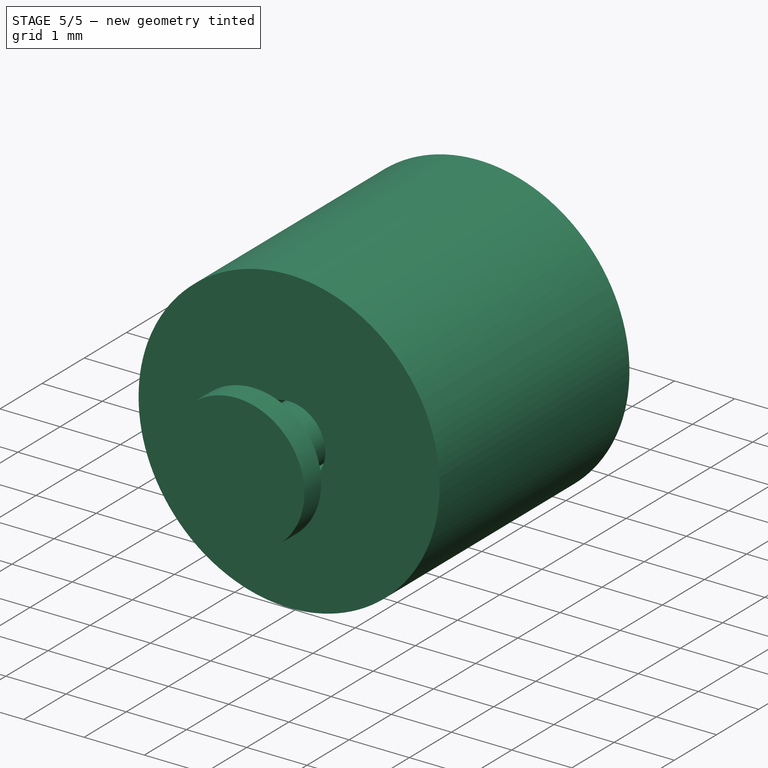
[diagram: stage 5 of 5 — iso view after this stage's code; geometry added in this stage tinted green]
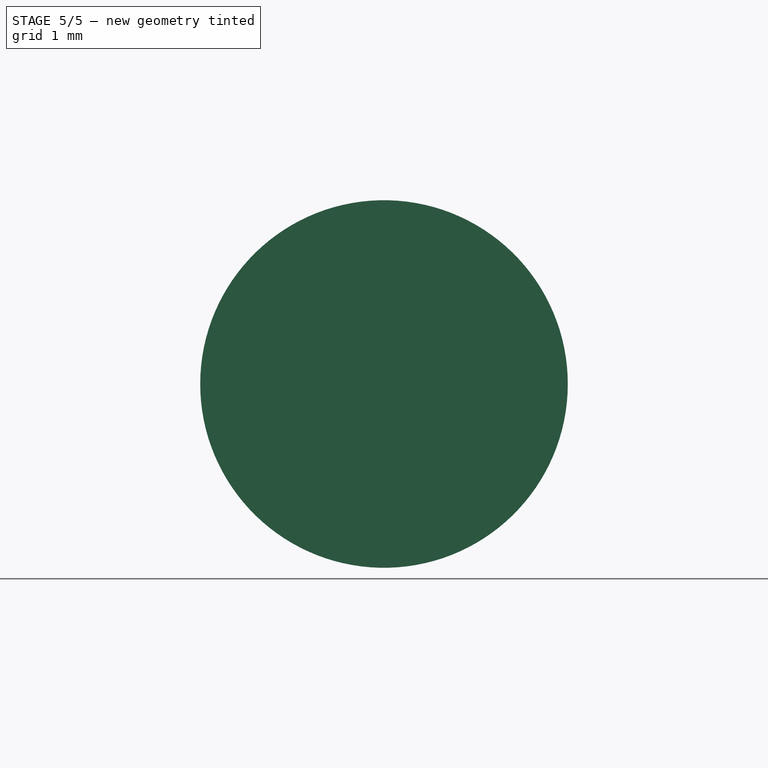
[diagram: stage 5 of 5 — front view after this stage's code; geometry added in this stage tinted green]
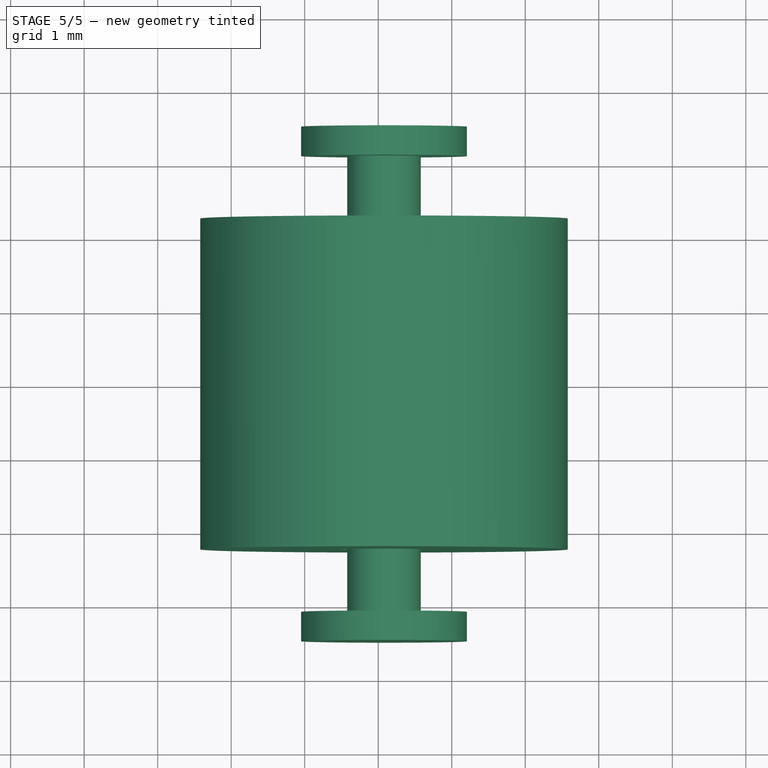
[diagram: stage 5 of 5 — top view after this stage's code; geometry added in this stage tinted green]
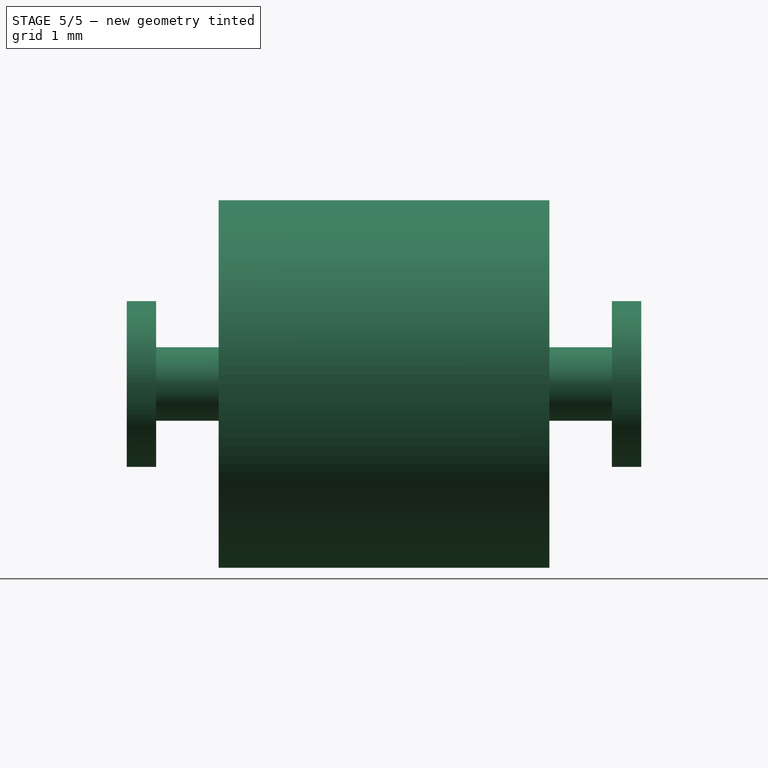
[diagram: stage 5 of 5 — right view after this stage's code; geometry added in this stage tinted green]
FEATURE [PartDesign::SubShapeBinder] Binder  label="Binder(Pocket004)"
  BindCopyOnChange = 0
  BindMode = 0
  ClaimChildren = false
  Context = -> Part [Body001.Binder.]
  FillStyle = 0
  Fuse = false
  MakeFace = true
  OffsetFill = false
  OffsetIntersection = false
  OffsetJoinType = 0
  OffsetOpenResult = false
  PartialLoad = false
  Relative = true
  Support = -> [Body[Pocket004.Edge208]]
  TreeRank = 52
  _Version = 8
FEATURE [Sketcher::SketchObject] Sketch012
  ArcFitTolerance = 1e-06
  AttachmentSupport = -> [XZ_Plane001]
  ExternalGeometry = -> [Binder]
  FullyConstrained = true
  MapMode = 5
  Placement = pos=(0,0,0) rot=(1,0,0;1.5708rad)
  Support = -> [XZ_Plane001]
  TreeRank = 53
  sketch-geometry (2):
    g0: Circle CenterX=-8.9215 CenterY=7.62943 CenterZ=0 NormalX=0 NormalY=0 NormalZ=1 AngleXU=0 Radius=2.5
    g1: Circle CenterX=-8.9215 CenterY=7.62943 CenterZ=0 NormalX=0 NormalY=0 NormalZ=1 AngleXU=0 Radius=0.6
  constraints (4):
    c: Coincident(g-3,g0)
    c: Coincident(g1,g-3)
    c: Diameter(g1) = 1.2
    c: Diameter(g0) = 5
FEATURE [PartDesign::Pad] Pad006
  ClaimChildren = false
  Direction = (1,1,1)
  Fit = 0
  FitJoin = 0
  InnerFit = 0
  InnerFitJoin = 0
  InnerTaperAngle = 0
  InnerTaperAngleRev = 0
  Length = 4.5
  Length2 = 100
  Linearize = true
  Midplane = true
  NewSolid = false
  Placement = pos=(0,0,0) rot=(1,0,0;1.5708rad)
  Profile = -> Sketch012
  Suppress = false
  TreeRank = 54
  Type = 0
  _ProfileBasedVersion = 1
FEATURE [PartDesign::Body] Body001  label="LimitSwitchRollBody"
  AutoGroupSolids = false
  ClaimAllChildren = false
  ExportMode = 0
  Group = -> [Binder,Sketch012,Pad006]
  Origin = -> Origin002
  Tip = -> Pad006
  TreeRank = 51
  _ExportChildren = -> [Binder,Pad006]
  _GroupVersion = 1
FEATURE [PartDesign::SubShapeBinder] Binder001  label="Binder001(Pocket004)..."
  BindCopyOnChange = 0
  BindMode = 0
  ClaimChildren = false
  Context = -> Part [Body002.Binder001.]
  FillStyle = 0
  Fuse = false
  MakeFace = true
  OffsetFill = false
  OffsetIntersection = false
  OffsetJoinType = 0
  OffsetOpenResult = false
  PartialLoad = false
  Relative = true
  Support = -> [Body[Pocket004.Face41,Pocket004.Face71,Pocket004.Face75]]
  TreeRank = 65
  _Version = 8
FEATURE [PartDesign::Plane] DatumPlane001
  AttachmentSupport = -> [Binder001]
  Length = 10
  MapMode = 45
  MinimumLength = 10
  MinimumWidth = 10
  Placement = pos=(-8.9215,-7.1e-15,7.62944) rot=(0,1,0;0.125792rad)
  ResizeMode = 0
  Support = -> [Binder001]
  TreeRank = 66
  Width = 10
FEATURE [PartDesign::Line] DatumLine
  AttacherType = Attacher::AttachEngineLine
  AttachmentSupport = -> [Binder001]
  Length = 10
  MapMode = 19
  MinimumLength = 10
  Placement = pos=(-8.9215,-3,7.62943) rot=(1,0,0;1.5708rad)
  ResizeMode = 0
  Support = -> [Binder001]
  TreeRank = 67
FEATURE [Sketcher::SketchObject] Sketch013
  ArcFitTolerance = 1e-06
  AttachmentSupport = -> [DatumPlane001]
  FullyConstrained = false
  MapMode = 5
  Placement = pos=(-8.9215,-7.1e-15,7.62944) rot=(0,1,0;0.125792rad)
  Support = -> [DatumPlane001]
  TreeRank = 68
  sketch-geometry (8):
    g0: LineSegment StartX=0 StartY=3.5 StartZ=0 EndX=1.12792 EndY=3.5 EndZ=0
    g1: LineSegment StartX=1.12792 StartY=3.5 StartZ=0 EndX=1.12792 EndY=3.1 EndZ=0
    g2: LineSegment StartX=1.12792 StartY=3.1 StartZ=0 EndX=0.5 EndY=3.1 EndZ=0
    g3: LineSegment StartX=0.5 StartY=3.1 StartZ=0 EndX=0.5 EndY=-3.1 EndZ=0
    g4: LineSegment StartX=0.5 StartY=-3.1 StartZ=0 EndX=1.12792 EndY=-3.1 EndZ=0
    g5: LineSegment StartX=1.12792 StartY=-3.1 StartZ=0 EndX=1.12792 EndY=-3.5 EndZ=0
    g6: LineSegment StartX=1.12792 StartY=-3.5 StartZ=0 EndX=0 EndY=-3.5 EndZ=0
    g7: LineSegment StartX=0 StartY=-3.5 StartZ=0 EndX=0 EndY=3.5 EndZ=0
  constraints (22):
    c: PointOnObject(g0,g-2)
    c: Horizontal(g0)
    c: Coincident(g1,g0)
    c: Coincident(g2,g1)
    c: Horizontal(g2)
    c: Coincident(g3,g2)
    c: Vertical(g3)
    c: Coincident(g4,g3)
    c: Coincident(g5,g4)
    c: Coincident(g6,g5)
    c: PointOnObject(g6,g-2)
    c: Horizontal(g6)
    c: Coincident(g7,g6)
    c: Coincident(g7,g0)
    c: Equal(g1,g5)
    c: Symmetric(g0,g5,g-1)
    c: Horizontal(g4)
    c: DistanceX(g0,g2) = 0.5
    c: DistanceY(g7,g7) = 7
    c: Vertical(g1)
    c: Vertical(g5)
    c: DistanceY(g4,g1) = 6.2
FEATURE [PartDesign::Revolution] Revolution
  Angle = 360
  Axis = (0,-1,0)
  Base = (-8.9215,-3,7.62943)
  ClaimChildren = false
  Fit = 0
  FitJoin = 0
  InnerFit = 0
  InnerFitJoin = 0
  NewSolid = false
  Placement = pos=(-8.9215,-7.1e-15,7.62944) rot=(0,1,0;0.125792rad)
  Profile = -> Sketch013
  ReferenceAxis = -> DatumLine
  Reversed = true
  Suppress = false
  TreeRank = 69
  _ProfileBasedVersion = 1
FEATURE [Sketcher::SketchObject] Sketch015
  ArcFitTolerance = 1e-06
  AttachmentSupport = -> [Pocket005]
  ExternalGeometry = -> [Pocket005]
  FullyConstrained = true
  MapMode = 5
  Placement = pos=(0,-2.25,-5e-16) rot=(1,0,0;1.5708rad)
  Support = -> [Pocket005]
  TreeRank = 72
  sketch-geometry (4):
    g0: LineSegment StartX=0 StartY=0 StartZ=0 EndX=27.8 EndY=0 EndZ=0
    g1: LineSegment StartX=27.8 StartY=0 StartZ=0 EndX=27.8 EndY=-15.9 EndZ=0
    g2: LineSegment StartX=27.8 StartY=-15.9 StartZ=0 EndX=0 EndY=-15.9 EndZ=0
    g3: LineSegment StartX=0 StartY=-15.9 StartZ=0 EndX=0 EndY=0 EndZ=0
  constraints (11):
    c: Coincident(g0,g1)
    c: Coincident(g1,g2)
    c: Coincident(g2,g3)
    c: Coincident(g3,g0)
    c: Horizontal(g0)
    c: Horizontal(g2)
    c: Vertical(g1)
    c: Vertical(g3)
    c: Coincident(g0,g-1)
    c: PointOnObject(g-3,g1)
    c: PointOnObject(g-4,g2)
FEATURE [PartDesign::SubShapeBinder] Binder002  label="Binder002(Pocket005)"
  BindCopyOnChange = 0
  BindMode = 0
  ClaimChildren = false
  Context = -> Part [Body.Binder002.]
  FillStyle = 0
  Fuse = false
  MakeFace = true
  OffsetFill = false
  OffsetIntersection = false
  OffsetJoinType = 0
  OffsetOpenResult = false
  PartialLoad = false
  Relative = true
  Support = -> [Pocket005[Face5]]
  TreeRank = 75
  _Version = 8
FEATURE [PartDesign::Pocket] Pocket006
  BaseFeature = -> Pocket005
  ClaimChildren = false
  Fit = 0
  FitJoin = 0
  InnerFit = 0
  InnerFitJoin = 0
  InnerTaperAngle = 0
  InnerTaperAngleRev = 0
  Length = 0
  Length2 = 100
  Linearize = true
  NewSolid = false
  Placement = pos=(0,0,0) rot=(1,0,0;1.5708rad)
  Profile = -> Sketch015
  Suppress = false
  TreeRank = 74
  Type = 3
  UpToFace = -> Binder002 [Face1]
  _ProfileBasedVersion = 1
FEATURE [PartDesign::Pad] Pad007
  BaseFeature = -> Pocket006
  ClaimChildren = false
  ColoredElements = -> Pad007 [Face1,Face10,Face11,Face12,Face13,Face14,Face15,Face16,Face17,Face18,Face19,Face2,Face20,Face21,Face22,Face23,Face27,Face28,Face29,Face3,Face30,Face31,Face32,Face33,Face34,Face35,Face36,Face37,Face38,Face39,Face4,Face40,Face41,Face42,Face43,Face44,Face45,Face46,Face47,Face48,+33 more]
  Direction = (1,1,1)
  Fit = 0
  FitJoin = 0
  InnerFit = 0
  InnerFitJoin = 0
  InnerTaperAngle = 0
  InnerTaperAngleRev = 0
  Length = 10
  Length2 = 100
  Linearize = true
  NewSolid = false
  Placement = pos=(0,0,0) rot=(1,0,0;1.5708rad)
  Profile = -> Binder002
  Reversed = true
  Suppress = false
  TreeRank = 75
  Type = 2
  _ProfileBasedVersion = 1
FEATURE [PartDesign::Body] Body  label="LimitSwitchBodyody"
  AutoGroupSolids = false
  ClaimAllChildren = false
  ExportMode = 0
  Group = -> [Sketch,Pad,Sketch001,Pad001,Sketch002,Pocket,Mirrored,Sketch003,Pocket001,DatumPlane,Sketch004,Pad002,LinearPattern,Sketch005,Pocket002,Mirrored001,Sketch006,Pocket003,Sketch008,Pad003,Sketch009,Pad004,Sketch010,Pad005,Mirrored002,Sketch011,Pocket004,Sketch014,Pocket005,Sketch015,Binder002,Pocket006,Pad007]
  Origin = -> Origin
  Tip = -> Pad007
  TreeRank = 10
  _ExportChildren = -> [Pad,Pad001,Pocket,Mirrored,Pocket001,DatumPlane,Pad002,LinearPattern,Pocket002,Mirrored001,Pocket003,Pad003,Pad004,Pad005,Mirrored002,Pocket004,Pocket005,Pocket006,Pad007]
  _GroupVersion = 1
FEATURE [App::Part] Part  label="LimitSwitchPart"
  ClaimAllChildren = false
  ExportMode = 1
  Group = -> [Body,Body001,Body002]
  Origin = -> Origin001
  TreeRank = 41
  _ExportChildren = -> [Body,Body001,Body002]
  _GroupVersion = 1
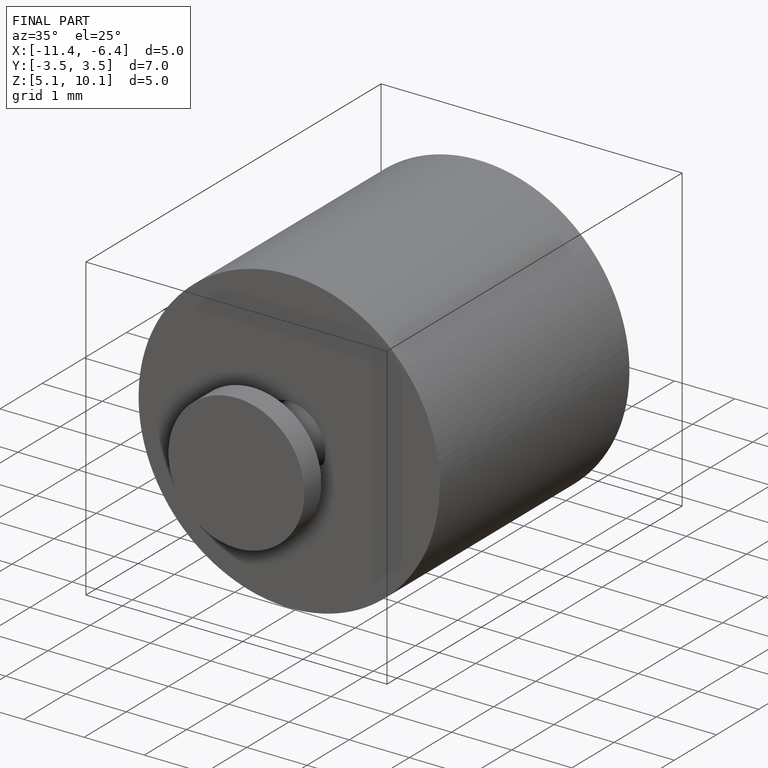
[diagram: finished part — iso view with bounding-box wireframe]
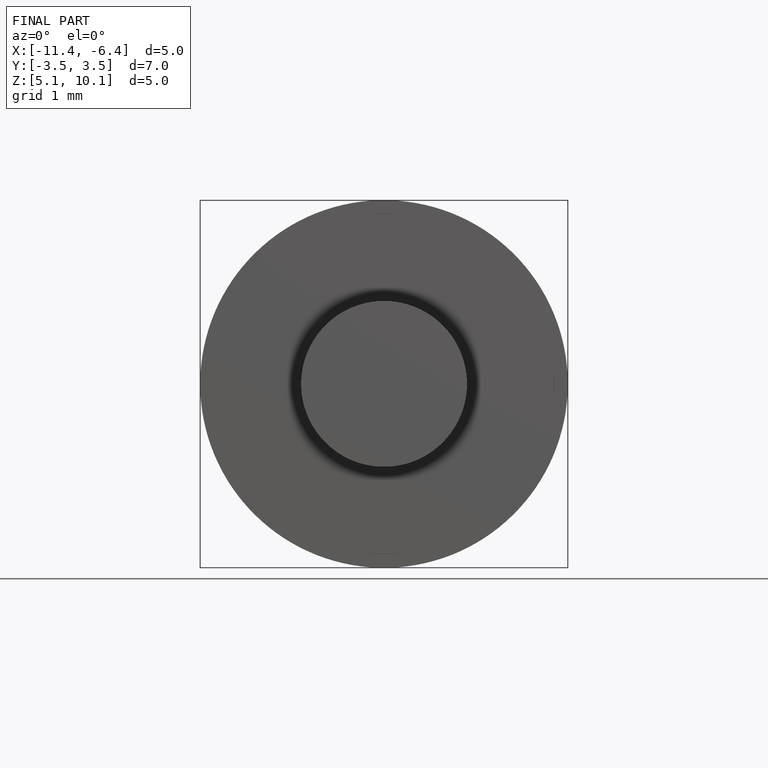
[diagram: finished part — front view with bounding-box wireframe]
